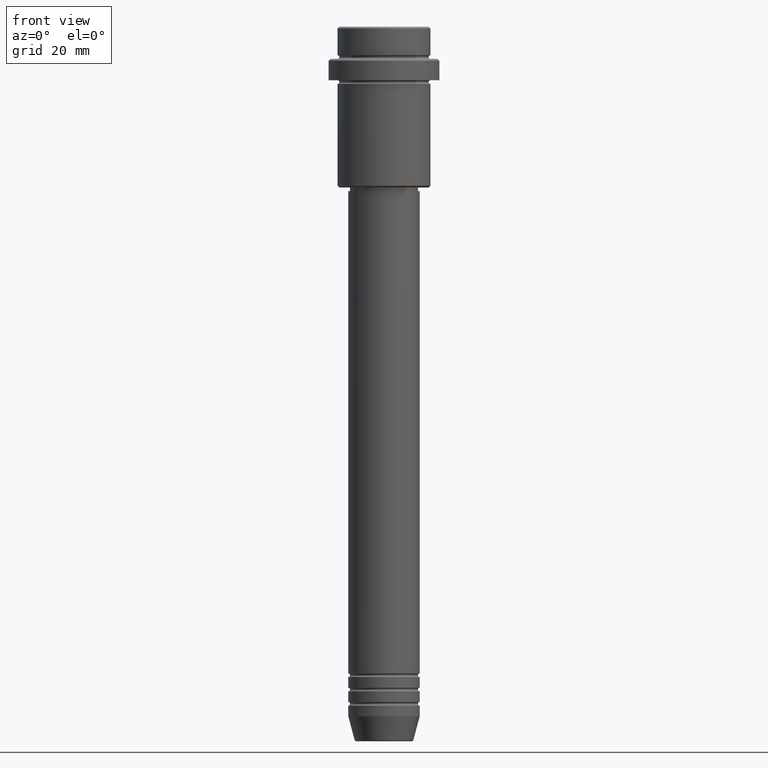
[diagram: clean part render]
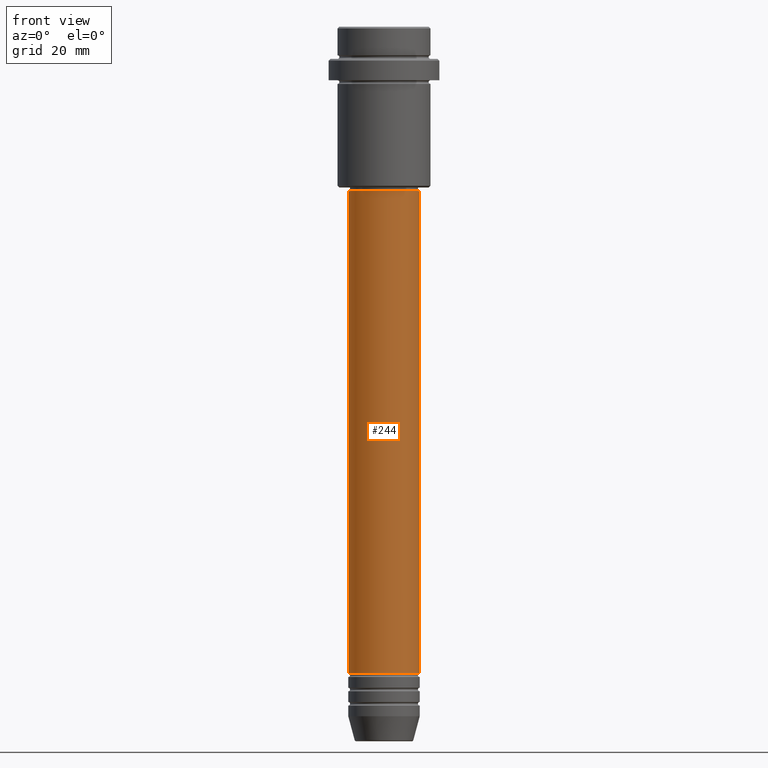
[diagram: same view with one face highlighted and labeled with its STEP entity id]
A machine part, front view. The second image highlights one B-rep face of the part: STEP entity #244.
In plain terms, the highlighted cylindrical surface (edge-blend (fillet) strip) has radius 10 mm, axis along (-0, -0, 1).
Its self-contained STEP definition (entity closure, byte-faithful):
#72 = CARTESIAN_POINT ( 'NONE',  ( 0.000000000000000000, 0.000000000000000000, 0.000000000000000000 ) ) ;
#127 = CARTESIAN_POINT ( 'NONE',  ( 10.00000000000000178, 0.000000000000000000, 0.000000000000000000 ) ) ;
#147 = EDGE_CURVE ( 'NONE', #484, #214, #977, .T. ) ;
#149 = CARTESIAN_POINT ( 'NONE',  ( 0.000000000000000000, 0.000000000000000000, -46.00000000000002132 ) ) ;
#199 = AXIS2_PLACEMENT_3D ( 'NONE', #149, #1236, #445 ) ;
#201 = VECTOR ( 'NONE', #251, 1000.000000000000000 ) ;
#214 = VERTEX_POINT ( 'NONE', #396 ) ;
#220 = ORIENTED_EDGE ( 'NONE', *, *, #1051, .T. ) ;
#231 = AXIS2_PLACEMENT_3D ( 'NONE', #1006, #796, #360 ) ;
#244 = ADVANCED_FACE ( 'NONE', ( #505 ), #1154, .T. ) ;
#251 = DIRECTION ( 'NONE',  ( -0.000000000000000000, -0.000000000000000000, 1.000000000000000000 ) ) ;
#261 = CARTESIAN_POINT ( 'NONE',  ( -10.00000000000000178, 1.224646799147353454E-15, -46.00000000000002132 ) ) ;
#310 = ORIENTED_EDGE ( 'NONE', *, *, #583, .F. ) ;
#360 = DIRECTION ( 'NONE',  ( 1.000000000000000000, 0.000000000000000000, 0.000000000000000000 ) ) ;
#396 = CARTESIAN_POINT ( 'NONE',  ( 10.00000000000000178, 0.000000000000000000, -46.00000000000002132 ) ) ;
#445 = DIRECTION ( 'NONE',  ( 1.000000000000000000, 0.000000000000000000, 0.000000000000000000 ) ) ;
#484 = VERTEX_POINT ( 'NONE', #261 ) ;
#505 = FACE_OUTER_BOUND ( 'NONE', #1238, .T. ) ;
#583 = EDGE_CURVE ( 'NONE', #1090, #484, #897, .T. ) ;
#639 = CARTESIAN_POINT ( 'NONE',  ( 10.00000000000000000, 0.000000000000000000, -180.9999999999999147 ) ) ;
#677 = DIRECTION ( 'NONE',  ( -0.000000000000000000, -0.000000000000000000, 1.000000000000000000 ) ) ;
#796 = DIRECTION ( 'NONE',  ( -0.000000000000000000, -0.000000000000000000, 1.000000000000000000 ) ) ;
#897 = LINE ( 'NONE', #1333, #201 ) ;
#918 = DIRECTION ( 'NONE',  ( -0.000000000000000000, -0.000000000000000000, 1.000000000000000000 ) ) ;
#927 = CARTESIAN_POINT ( 'NONE',  ( -10.00000000000000000, 1.224646799147353256E-15, -180.9999999999999147 ) ) ;
#977 = CIRCLE ( 'NONE', #199, 10.00000000000000178 ) ;
#996 = LINE ( 'NONE', #127, #1140 ) ;
#1006 = CARTESIAN_POINT ( 'NONE',  ( 0.000000000000000000, 0.000000000000000000, -180.9999999999999147 ) ) ;
#1051 = EDGE_CURVE ( 'NONE', #1090, #1228, #1255, .T. ) ;
#1087 = AXIS2_PLACEMENT_3D ( 'NONE', #72, #918, #1143 ) ;
#1090 = VERTEX_POINT ( 'NONE', #927 ) ;
#1140 = VECTOR ( 'NONE', #677, 1000.000000000000000 ) ;
#1143 = DIRECTION ( 'NONE',  ( 1.000000000000000000, 0.000000000000000000, 0.000000000000000000 ) ) ;
#1154 = CYLINDRICAL_SURFACE ( 'NONE', #1087, 10.00000000000000178 ) ;
#1228 = VERTEX_POINT ( 'NONE', #639 ) ;
#1236 = DIRECTION ( 'NONE',  ( -0.000000000000000000, -0.000000000000000000, 1.000000000000000000 ) ) ;
#1238 = EDGE_LOOP ( 'NONE', ( #310, #220, #1387, #1382 ) ) ;
#1255 = CIRCLE ( 'NONE', #231, 10.00000000000000000 ) ;
#1333 = CARTESIAN_POINT ( 'NONE',  ( -10.00000000000000178, 1.224646799147353454E-15, 0.000000000000000000 ) ) ;
#1382 = ORIENTED_EDGE ( 'NONE', *, *, #147, .F. ) ;
#1383 = EDGE_CURVE ( 'NONE', #1228, #214, #996, .T. ) ;
#1387 = ORIENTED_EDGE ( 'NONE', *, *, #1383, .T. ) ;